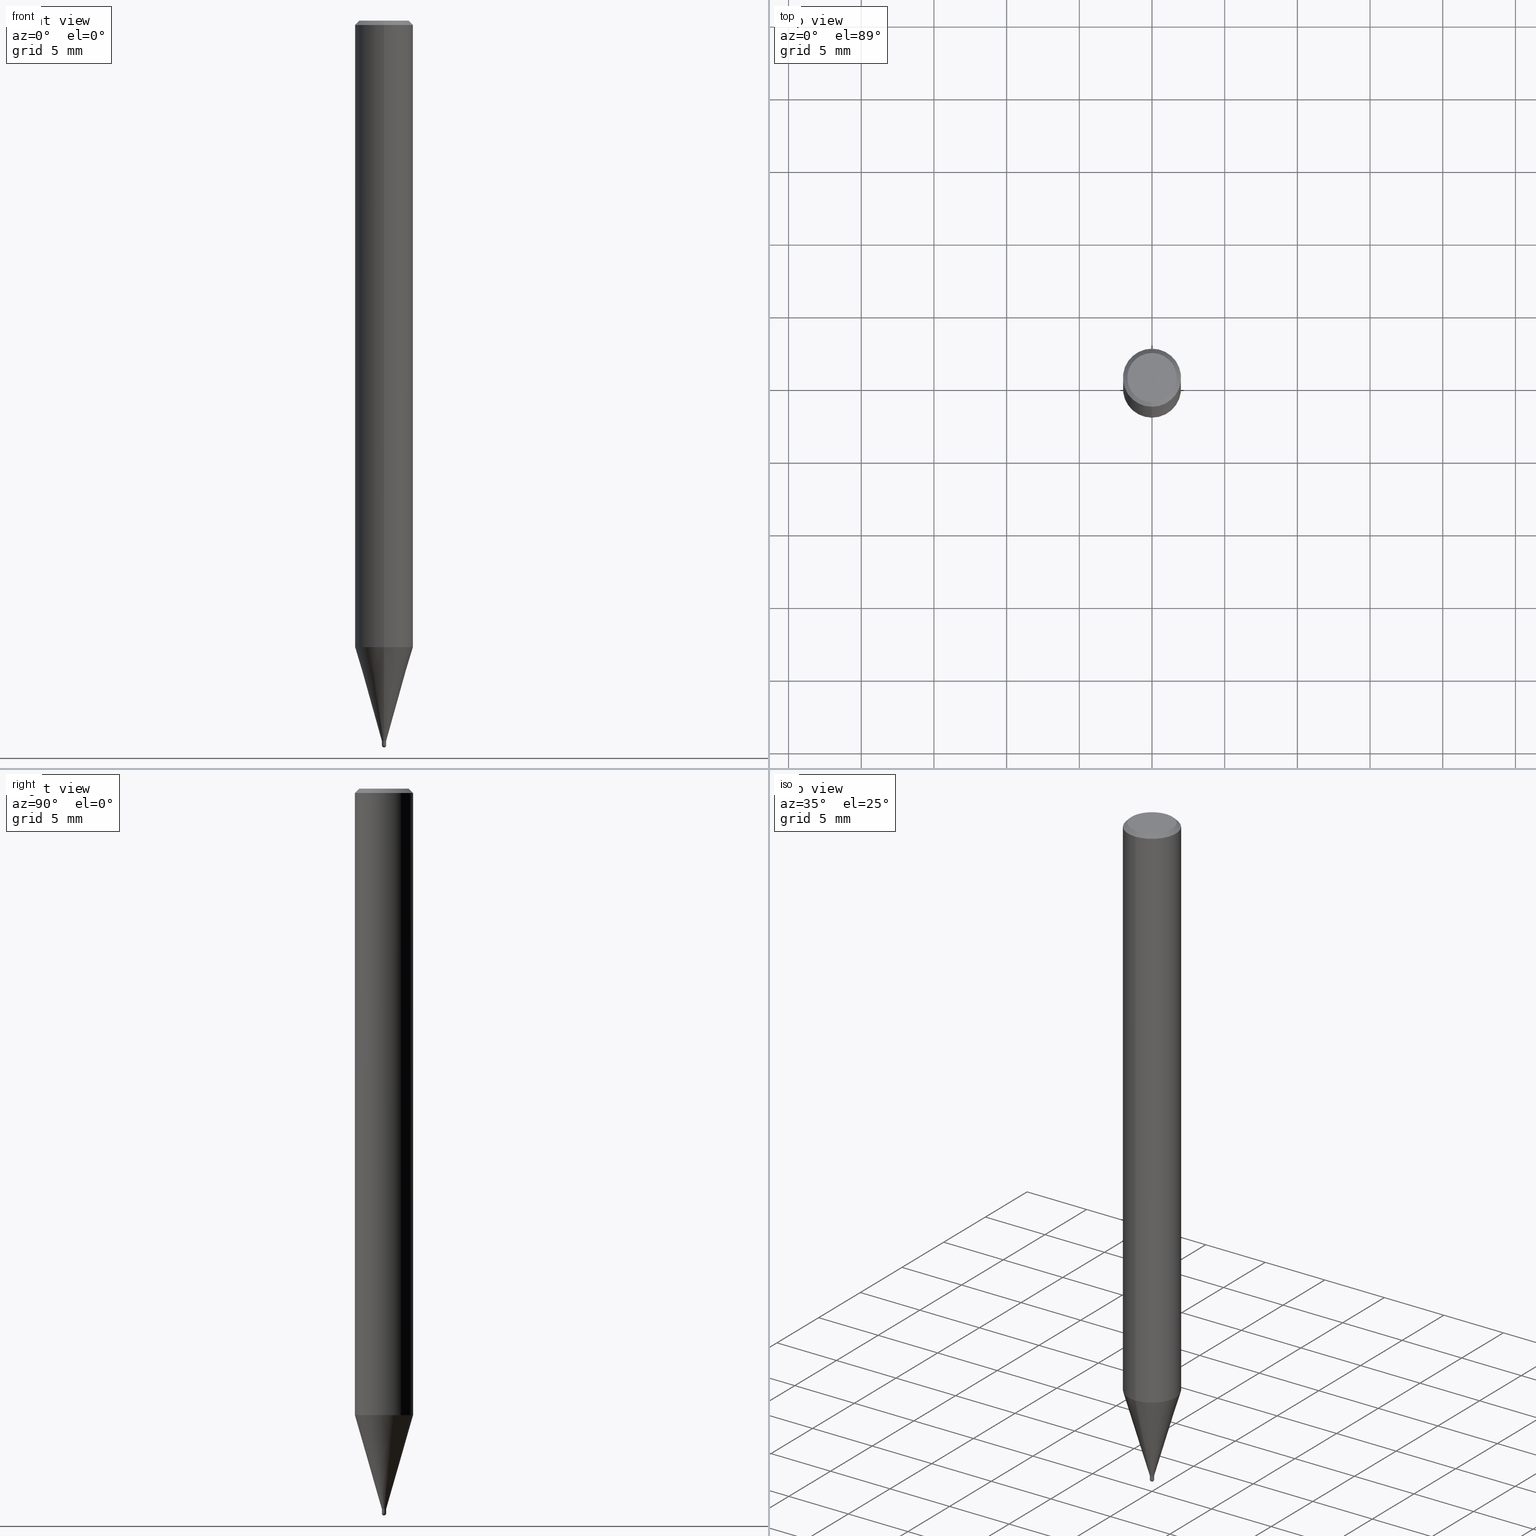
[diagram: canonical four-view strip — front | top / right | iso, engineering-drawing reading convention]
A machine part, canonical four-view strip (front | top / right | iso — engineering-drawing reading convention). The complete STEP part file that produces these views, byte-faithful:
ISO-10303-21;
HEADER;
FILE_DESCRIPTION(('no description'),'unknown implementation level');
FILE_NAME('HSB2003-0045-Huellk.stp','  ',('CIMSOURCE GmbH'),('CADClick - KiM GmbH - www.kimweb.de'),'unknown preprocess','ACIS','unknown authorization');
FILE_SCHEMA(('automotive_design'));
ENDSEC;
DATA;
#1=MECHANICAL_DESIGN_GEOMETRIC_PRESENTATION_REPRESENTATION(' ',(#14,#15,#16,#17,#18,#19,#20,#21,#22,#23,#24,#25,#26,#27,#28,#29,#30,#31,#32,#33,#34,#35,#36,#37,#38,#39,#40,#41,#42,#43,#44,#45,#46,#47,#48,#49,#50,#51,#52,#53,#54,#55,#56,#57,#58,#59,#60,#61,#62,#63,#64,#65,#66),#10);
#2=PRODUCT_DEFINITION_CONTEXT('',#67,'design');
#3=APPLICATION_PROTOCOL_DEFINITION('INTERNATIONAL STANDARD','automotive_design',1994,#67);
#4=PRODUCT_CATEGORY_RELATIONSHIP('NONE','NONE',#68,#69);
#5=SHAPE_DEFINITION_REPRESENTATION(#70,#71);
#6=PRODUCT_DEFINITION_CONTEXT('',#72,'design');
#7=APPLICATION_PROTOCOL_DEFINITION('INTERNATIONAL STANDARD','automotive_design',1994,#72);
#8=PRODUCT_CATEGORY_RELATIONSHIP('NONE','NONE',#73,#74);
#9=SHAPE_DEFINITION_REPRESENTATION(#75,#76);
#10= (GEOMETRIC_REPRESENTATION_CONTEXT(3)GLOBAL_UNCERTAINTY_ASSIGNED_CONTEXT((#79))GLOBAL_UNIT_ASSIGNED_CONTEXT((#81,#82,#83))REPRESENTATION_CONTEXT('NONE','WORKSPACE'));
#14=STYLED_ITEM('',(#85),#86);
#15=STYLED_ITEM('',(#87),#88);
#16=STYLED_ITEM('',(#89),#90);
#17=STYLED_ITEM('',(#91),#92);
#18=STYLED_ITEM('',(#93),#94);
#19=STYLED_ITEM('',(#95),#96);
#20=STYLED_ITEM('',(#97),#98);
#21=STYLED_ITEM('',(#99),#100);
#22=STYLED_ITEM('',(#101),#102);
#23=STYLED_ITEM('',(#103),#104);
#24=STYLED_ITEM('',(#105),#106);
#25=STYLED_ITEM('',(#107),#108);
#26=STYLED_ITEM('',(#109),#110);
#27=STYLED_ITEM('',(#111),#112);
#28=STYLED_ITEM('',(#113),#114);
#29=STYLED_ITEM('',(#115),#116);
#30=STYLED_ITEM('',(#117),#118);
#31=STYLED_ITEM('',(#119),#120);
#32=STYLED_ITEM('',(#121),#122);
#33=STYLED_ITEM('',(#123),#124);
#34=STYLED_ITEM('',(#125),#126);
#35=STYLED_ITEM('',(#127),#128);
#36=STYLED_ITEM('',(#129),#130);
#37=STYLED_ITEM('',(#131),#132);
#38=STYLED_ITEM('',(#133),#134);
#39=STYLED_ITEM('',(#135),#136);
#40=STYLED_ITEM('',(#137),#138);
#41=STYLED_ITEM('',(#139),#140);
#42=STYLED_ITEM('',(#141),#142);
#43=STYLED_ITEM('',(#143),#144);
#44=STYLED_ITEM('',(#145),#146);
#45=STYLED_ITEM('',(#147),#148);
#46=STYLED_ITEM('',(#149),#150);
#47=STYLED_ITEM('',(#151),#152);
#48=STYLED_ITEM('',(#153),#154);
#49=STYLED_ITEM('',(#155),#156);
#50=STYLED_ITEM('',(#157),#158);
#51=STYLED_ITEM('',(#159),#160);
#52=STYLED_ITEM('',(#161),#162);
#53=STYLED_ITEM('',(#163),#164);
#54=STYLED_ITEM('',(#165),#166);
#55=STYLED_ITEM('',(#167),#168);
#56=STYLED_ITEM('',(#169),#170);
#57=STYLED_ITEM('',(#171),#172);
#58=STYLED_ITEM('',(#173),#174);
#59=STYLED_ITEM('',(#175),#176);
#60=STYLED_ITEM('',(#177),#178);
#61=STYLED_ITEM('',(#179),#180);
#62=STYLED_ITEM('',(#181),#182);
#63=STYLED_ITEM('',(#183),#184);
#64=STYLED_ITEM('',(#185),#186);
#65=STYLED_ITEM('',(#187),#188);
#66=STYLED_ITEM('',(#189),#190);
#67=APPLICATION_CONTEXT(' ');
#68=PRODUCT_CATEGORY('part','NONE');
#69=PRODUCT_RELATED_PRODUCT_CATEGORY('detail',' ',(#191));
#70=PRODUCT_DEFINITION_SHAPE('NONE','NONE',#192);
#71=ADVANCED_BREP_SHAPE_REPRESENTATION('1',(#176,#193),#10);
#72=APPLICATION_CONTEXT(' ');
#73=PRODUCT_CATEGORY('part','NONE');
#74=PRODUCT_RELATED_PRODUCT_CATEGORY('detail',' ',(#194));
#75=PRODUCT_DEFINITION_SHAPE('NONE','NONE',#195);
#76=ADVANCED_BREP_SHAPE_REPRESENTATION('2',(#140,#196),#10);
#79=UNCERTAINTY_MEASURE_WITH_UNIT(LENGTH_MEASURE(1.0E-006),#81,'','');
#81= (CONVERSION_BASED_UNIT('MILLIMETRE',#199)LENGTH_UNIT()NAMED_UNIT(#202));
#82= (NAMED_UNIT(#204)PLANE_ANGLE_UNIT()SI_UNIT($,.RADIAN.));
#83= (NAMED_UNIT(#204)SOLID_ANGLE_UNIT()SI_UNIT($,.STERADIAN.));
#85=PRESENTATION_STYLE_ASSIGNMENT((#210));
#86=EDGE_CURVE('',#90,#104,#211,.T.);
#87=PRESENTATION_STYLE_ASSIGNMENT((#212));
#88=EDGE_CURVE('',#160,#112,#213,.T.);
#89=PRESENTATION_STYLE_ASSIGNMENT((#214));
#90=VERTEX_POINT('',#215);
#91=PRESENTATION_STYLE_ASSIGNMENT((#216));
#92=EDGE_CURVE('',#110,#160,#217,.T.);
#93=PRESENTATION_STYLE_ASSIGNMENT((#218));
#94=VERTEX_POINT('',#219);
#95=PRESENTATION_STYLE_ASSIGNMENT((#220));
#96=VERTEX_POINT('',#221);
#97=PRESENTATION_STYLE_ASSIGNMENT((#222));
#98=ADVANCED_FACE('',(#223),#224,.T.);
#99=PRESENTATION_STYLE_ASSIGNMENT((#225));
#100=ADVANCED_FACE('',(#226),#227,.T.);
#101=PRESENTATION_STYLE_ASSIGNMENT((#228));
#102=EDGE_CURVE('',#182,#170,#229,.T.);
#103=PRESENTATION_STYLE_ASSIGNMENT((#230));
#104=VERTEX_POINT('',#231);
#105=PRESENTATION_STYLE_ASSIGNMENT((#232));
#106=VERTEX_POINT('',#233);
#107=PRESENTATION_STYLE_ASSIGNMENT((#234));
#108=ADVANCED_FACE('',(#235),#236,.T.);
#109=PRESENTATION_STYLE_ASSIGNMENT((#237));
#110=VERTEX_POINT('',#238);
#111=PRESENTATION_STYLE_ASSIGNMENT((#239));
#112=VERTEX_POINT('',#240);
#113=PRESENTATION_STYLE_ASSIGNMENT((#241));
#114=EDGE_CURVE('',#190,#152,#242,.T.);
#115=PRESENTATION_STYLE_ASSIGNMENT((#243));
#116=ADVANCED_FACE('',(#244),#245,.T.);
#117=PRESENTATION_STYLE_ASSIGNMENT((#246));
#118=EDGE_CURVE('',#112,#162,#247,.T.);
#119=PRESENTATION_STYLE_ASSIGNMENT((#248));
#120=EDGE_CURVE('',#96,#90,#249,.T.);
#121=PRESENTATION_STYLE_ASSIGNMENT((#250));
#122=ADVANCED_FACE('',(#251),#252,.T.);
#123=PRESENTATION_STYLE_ASSIGNMENT((#253));
#124=ADVANCED_FACE('',(#254),#255,.T.);
#125=PRESENTATION_STYLE_ASSIGNMENT((#256));
#126=EDGE_CURVE('',#190,#182,#257,.T.);
#127=PRESENTATION_STYLE_ASSIGNMENT((#258));
#128=EDGE_CURVE('',#152,#190,#259,.T.);
#129=PRESENTATION_STYLE_ASSIGNMENT((#260));
#130=EDGE_CURVE('',#106,#96,#261,.T.);
#131=PRESENTATION_STYLE_ASSIGNMENT((#262));
#132=ADVANCED_FACE('',(#263),#264,.T.);
#133=PRESENTATION_STYLE_ASSIGNMENT((#265));
#134=EDGE_CURVE('',#162,#110,#266,.T.);
#135=PRESENTATION_STYLE_ASSIGNMENT((#267));
#136=EDGE_CURVE('',#104,#106,#268,.T.);
#137=PRESENTATION_STYLE_ASSIGNMENT((#269));
#138=ADVANCED_FACE('',(#270),#271,.T.);
#139=PRESENTATION_STYLE_ASSIGNMENT((#272));
#140=MANIFOLD_SOLID_BREP('2',#273);
#141=PRESENTATION_STYLE_ASSIGNMENT((#274));
#142=VERTEX_POINT('',#275);
#143=PRESENTATION_STYLE_ASSIGNMENT((#276));
#144=EDGE_CURVE('',#170,#152,#277,.T.);
#145=PRESENTATION_STYLE_ASSIGNMENT((#278));
#146=ADVANCED_FACE('',(#279,#280),#281,.T.);
#147=PRESENTATION_STYLE_ASSIGNMENT((#282));
#148=EDGE_CURVE('',#94,#90,#283,.T.);
#149=PRESENTATION_STYLE_ASSIGNMENT((#284));
#150=ADVANCED_FACE('',(#285),#286,.T.);
#151=PRESENTATION_STYLE_ASSIGNMENT((#287));
#152=VERTEX_POINT('',#288);
#153=PRESENTATION_STYLE_ASSIGNMENT((#289));
#154=EDGE_CURVE('',#190,#152,#290,.T.);
#155=PRESENTATION_STYLE_ASSIGNMENT((#291));
#156=EDGE_CURVE('',#142,#94,#292,.T.);
#157=PRESENTATION_STYLE_ASSIGNMENT((#293));
#158=ADVANCED_FACE('',(#294),#295,.T.);
#159=PRESENTATION_STYLE_ASSIGNMENT((#296));
#160=VERTEX_POINT('',#297);
#161=PRESENTATION_STYLE_ASSIGNMENT((#298));
#162=VERTEX_POINT('',#299);
#163=PRESENTATION_STYLE_ASSIGNMENT((#300));
#164=EDGE_CURVE('',#90,#96,#301,.T.);
#165=PRESENTATION_STYLE_ASSIGNMENT((#302));
#166=EDGE_CURVE('',#94,#142,#303,.T.);
#167=PRESENTATION_STYLE_ASSIGNMENT((#304));
#168=EDGE_CURVE('',#96,#142,#305,.T.);
#169=PRESENTATION_STYLE_ASSIGNMENT((#306));
#170=VERTEX_POINT('',#307);
#171=PRESENTATION_STYLE_ASSIGNMENT((#308));
#172=ADVANCED_FACE('',(#309),#310,.T.);
#173=PRESENTATION_STYLE_ASSIGNMENT((#311));
#174=ADVANCED_FACE('',(#312),#313,.T.);
#175=PRESENTATION_STYLE_ASSIGNMENT((#314));
#176=MANIFOLD_SOLID_BREP('1',#315);
#177=PRESENTATION_STYLE_ASSIGNMENT((#316));
#178=EDGE_CURVE('',#112,#160,#317,.T.);
#179=PRESENTATION_STYLE_ASSIGNMENT((#318));
#180=EDGE_CURVE('',#110,#162,#319,.T.);
#181=PRESENTATION_STYLE_ASSIGNMENT((#320));
#182=VERTEX_POINT('',#321);
#183=PRESENTATION_STYLE_ASSIGNMENT((#322));
#184=EDGE_CURVE('',#170,#182,#323,.T.);
#185=PRESENTATION_STYLE_ASSIGNMENT((#324));
#186=EDGE_CURVE('',#106,#104,#325,.T.);
#187=PRESENTATION_STYLE_ASSIGNMENT((#326));
#188=ADVANCED_FACE('',(#327),#328,.T.);
#189=PRESENTATION_STYLE_ASSIGNMENT((#329));
#190=VERTEX_POINT('',#330);
#191=PRODUCT('1','1','PART-1-DESC',(#331));
#192=PRODUCT_DEFINITION('NONE','NONE',#332,#2);
#193=AXIS2_PLACEMENT_3D('',#333,#334,#335);
#194=PRODUCT('2','2','PART-2-DESC',(#336));
#195=PRODUCT_DEFINITION('NONE','NONE',#337,#6);
#196=AXIS2_PLACEMENT_3D('',#338,#339,#340);
#199=LENGTH_MEASURE_WITH_UNIT(LENGTH_MEASURE(1.0),#341);
#202=DIMENSIONAL_EXPONENTS(1.0,0.0,0.0,0.0,0.0,0.0,0.0);
#204=DIMENSIONAL_EXPONENTS(0.0,0.0,0.0,0.0,0.0,0.0,0.0);
#210=CURVE_STYLE('',#342,POSITIVE_LENGTH_MEASURE(1.0E-006),#343);
#211=LINE('',#344,#345);
#212=CURVE_STYLE('',#346,POSITIVE_LENGTH_MEASURE(1.0E-006),#347);
#213=CIRCLE('',#348,0.14995);
#214=POINT_STYLE(' ',#349,POSITIVE_LENGTH_MEASURE(1.0E-006),#350);
#215=CARTESIAN_POINT('',(2.44921270764475E-016,-2.0,-0.299999999999997));
#216=CURVE_STYLE('',#351,POSITIVE_LENGTH_MEASURE(1.0E-006),#352);
#217=LINE('',#353,#354);
#218=POINT_STYLE(' ',#355,POSITIVE_LENGTH_MEASURE(1.0E-006),#356);
#219=CARTESIAN_POINT('',(2.44921270764475E-016,-2.0,-43.098));
#220=POINT_STYLE(' ',#357,POSITIVE_LENGTH_MEASURE(1.0E-006),#358);
#221=CARTESIAN_POINT('',(0.0,2.0,-0.299999999999997));
#222=SURFACE_STYLE_USAGE(.BOTH.,#359);
#223=FACE_OUTER_BOUND('',#360,.T.);
#224=CONICAL_SURFACE('',#361,1.07495,0.279241047070178);
#225=SURFACE_STYLE_USAGE(.BOTH.,#362);
#226=FACE_OUTER_BOUND('',#363,.T.);
#227=PLANE('',#364);
#228=CURVE_STYLE('',#365,POSITIVE_LENGTH_MEASURE(1.0E-006),#366);
#229=CIRCLE('',#367,0.1499);
#230=POINT_STYLE(' ',#368,POSITIVE_LENGTH_MEASURE(1.0E-006),#369);
#231=CARTESIAN_POINT('',(2.08183080149804E-016,-1.7,0.0));
#232=POINT_STYLE(' ',#370,POSITIVE_LENGTH_MEASURE(1.0E-006),#371);
#233=CARTESIAN_POINT('',(0.0,1.7,0.0));
#234=SURFACE_STYLE_USAGE(.BOTH.,#372);
#235=FACE_OUTER_BOUND('',#373,.T.);
#236=SPHERICAL_SURFACE('',#374,0.15);
#237=POINT_STYLE(' ',#375,POSITIVE_LENGTH_MEASURE(1.0E-006),#376);
#238=CARTESIAN_POINT('',(0.0,1.99995,-43.098));
#239=POINT_STYLE(' ',#377,POSITIVE_LENGTH_MEASURE(1.0E-006),#378);
#240=CARTESIAN_POINT('',(1.83629722755666E-017,-0.14995,-49.55));
#241=CURVE_STYLE('',#379,POSITIVE_LENGTH_MEASURE(1.0E-006),#380);
#242=CIRCLE('',#381,0.15);
#243=SURFACE_STYLE_USAGE(.BOTH.,#382);
#244=FACE_OUTER_BOUND('',#383,.T.);
#245=PLANE('',#384);
#246=CURVE_STYLE('',#385,POSITIVE_LENGTH_MEASURE(1.0E-006),#386);
#247=LINE('',#387,#388);
#248=CURVE_STYLE('',#389,POSITIVE_LENGTH_MEASURE(1.0E-006),#390);
#249=CIRCLE('',#391,2.0);
#250=SURFACE_STYLE_USAGE(.BOTH.,#392);
#251=FACE_OUTER_BOUND('',#393,.T.);
#252=CONICAL_SURFACE('',#394,1.07495,0.279241047070178);
#253=SURFACE_STYLE_USAGE(.BOTH.,#395);
#254=FACE_OUTER_BOUND('',#396,.T.);
#255=CONICAL_SURFACE('',#397,0.14995,0.000333333320987618);
#256=CURVE_STYLE('',#398,POSITIVE_LENGTH_MEASURE(1.0E-006),#399);
#257=LINE('',#400,#401);
#258=CURVE_STYLE('',#402,POSITIVE_LENGTH_MEASURE(1.0E-006),#403);
#259=CIRCLE('',#404,0.15);
#260=CURVE_STYLE('',#405,POSITIVE_LENGTH_MEASURE(1.0E-006),#406);
#261=LINE('',#407,#408);
#262=SURFACE_STYLE_USAGE(.BOTH.,#409);
#263=FACE_OUTER_BOUND('',#410,.T.);
#264=CONICAL_SURFACE('',#411,1.85,0.785398163397453);
#265=CURVE_STYLE('',#412,POSITIVE_LENGTH_MEASURE(1.0E-006),#413);
#266=CIRCLE('',#414,1.99995);
#267=CURVE_STYLE('',#415,POSITIVE_LENGTH_MEASURE(1.0E-006),#416);
#268=CIRCLE('',#417,1.7);
#269=SURFACE_STYLE_USAGE(.BOTH.,#418);
#270=FACE_OUTER_BOUND('',#419,.T.);
#271=CYLINDRICAL_SURFACE('',#420,2.0);
#272=SURFACE_STYLE_USAGE(.BOTH.,#421);
#273=CLOSED_SHELL('',(#108,#124,#100,#150,#188));
#274=POINT_STYLE(' ',#422,POSITIVE_LENGTH_MEASURE(1.0E-006),#423);
#275=CARTESIAN_POINT('',(0.0,2.0,-43.098));
#276=CURVE_STYLE('',#424,POSITIVE_LENGTH_MEASURE(1.0E-006),#425);
#277=LINE('',#426,#427);
#278=SURFACE_STYLE_USAGE(.BOTH.,#428);
#279=FACE_OUTER_BOUND('',#429,.T.);
#280=FACE_BOUND('',#430,.T.);
#281=PLANE('',#431);
#282=CURVE_STYLE('',#432,POSITIVE_LENGTH_MEASURE(1.0E-006),#433);
#283=LINE('',#434,#435);
#284=SURFACE_STYLE_USAGE(.BOTH.,#436);
#285=FACE_OUTER_BOUND('',#437,.T.);
#286=CONICAL_SURFACE('',#438,0.14995,0.000333333320987618);
#287=POINT_STYLE(' ',#439,POSITIVE_LENGTH_MEASURE(1.0E-006),#440);
#288=CARTESIAN_POINT('',(0.0,0.15,-49.85));
#289=CURVE_STYLE('',#441,POSITIVE_LENGTH_MEASURE(1.0E-006),#442);
#290=CIRCLE('',#443,0.15);
#291=CURVE_STYLE('',#444,POSITIVE_LENGTH_MEASURE(1.0E-006),#445);
#292=CIRCLE('',#446,2.0);
#293=SURFACE_STYLE_USAGE(.BOTH.,#447);
#294=FACE_OUTER_BOUND('',#448,.T.);
#295=CONICAL_SURFACE('',#449,1.85,0.785398163397453);
#296=POINT_STYLE(' ',#450,POSITIVE_LENGTH_MEASURE(1.0E-006),#451);
#297=CARTESIAN_POINT('',(0.0,0.14995,-49.55));
#298=POINT_STYLE(' ',#452,POSITIVE_LENGTH_MEASURE(1.0E-006),#453);
#299=CARTESIAN_POINT('',(2.44915147732706E-016,-1.99995,-43.098));
#300=CURVE_STYLE('',#454,POSITIVE_LENGTH_MEASURE(1.0E-006),#455);
#301=CIRCLE('',#456,2.0);
#302=CURVE_STYLE('',#457,POSITIVE_LENGTH_MEASURE(1.0E-006),#458);
#303=CIRCLE('',#459,2.0);
#304=CURVE_STYLE('',#460,POSITIVE_LENGTH_MEASURE(1.0E-006),#461);
#305=LINE('',#462,#463);
#306=POINT_STYLE(' ',#464,POSITIVE_LENGTH_MEASURE(1.0E-006),#465);
#307=CARTESIAN_POINT('',(0.0,0.1499,-49.55));
#308=SURFACE_STYLE_USAGE(.BOTH.,#466);
#309=FACE_OUTER_BOUND('',#467,.T.);
#310=PLANE('',#468);
#311=SURFACE_STYLE_USAGE(.BOTH.,#469);
#312=FACE_OUTER_BOUND('',#470,.T.);
#313=CYLINDRICAL_SURFACE('',#471,2.0);
#314=SURFACE_STYLE_USAGE(.BOTH.,#472);
#315=CLOSED_SHELL('',(#122,#138,#132,#146,#172,#158,#174,#98,#116));
#316=CURVE_STYLE('',#473,POSITIVE_LENGTH_MEASURE(1.0E-006),#474);
#317=CIRCLE('',#475,0.14995);
#318=CURVE_STYLE('',#476,POSITIVE_LENGTH_MEASURE(1.0E-006),#477);
#319=CIRCLE('',#478,1.99995);
#320=POINT_STYLE(' ',#479,POSITIVE_LENGTH_MEASURE(1.0E-006),#480);
#321=CARTESIAN_POINT('',(1.83568492437974E-017,-0.1499,-49.55));
#322=CURVE_STYLE('',#481,POSITIVE_LENGTH_MEASURE(1.0E-006),#482);
#323=CIRCLE('',#483,0.1499);
#324=CURVE_STYLE('',#484,POSITIVE_LENGTH_MEASURE(1.0E-006),#485);
#325=CIRCLE('',#486,1.7);
#326=SURFACE_STYLE_USAGE(.BOTH.,#487);
#327=FACE_OUTER_BOUND('',#488,.T.);
#328=SPHERICAL_SURFACE('',#489,0.15);
#329=POINT_STYLE(' ',#490,POSITIVE_LENGTH_MEASURE(1.0E-006),#491);
#330=CARTESIAN_POINT('',(1.83690953073356E-017,-0.15,-49.85));
#331=PRODUCT_CONTEXT('',#67,'mechanical');
#332=PRODUCT_DEFINITION_FORMATION_WITH_SPECIFIED_SOURCE(' ','NONE',#191,.NOT_KNOWN.);
#333=CARTESIAN_POINT('',(0.0,0.0,0.0));
#334=DIRECTION('',(0.0,0.0,1.0));
#335=DIRECTION('',(1.0,0.0,0.0));
#336=PRODUCT_CONTEXT('',#72,'mechanical');
#337=PRODUCT_DEFINITION_FORMATION_WITH_SPECIFIED_SOURCE(' ','NONE',#194,.NOT_KNOWN.);
#338=CARTESIAN_POINT('',(0.0,0.0,0.0));
#339=DIRECTION('',(0.0,0.0,1.0));
#340=DIRECTION('',(1.0,0.0,0.0));
#341= (NAMED_UNIT(#202)LENGTH_UNIT()SI_UNIT(.MILLI.,.METRE.));
#342=DRAUGHTING_PRE_DEFINED_CURVE_FONT('continuous');
#343=COLOUR_RGB('',0.498039215803146,0.498039215803146,0.498039215803146);
#344=CARTESIAN_POINT('',(2.2655217545714E-016,-1.85,-0.149999999999999));
#345=VECTOR('',#493,1.0);
#346=DRAUGHTING_PRE_DEFINED_CURVE_FONT('continuous');
#347=COLOUR_RGB('',0.498039215803146,0.498039215803146,0.498039215803146);
#348=AXIS2_PLACEMENT_3D('',#494,#495,#496);
#349=PRE_DEFINED_MARKER('');
#350=COLOUR_RGB('',0.498039215803146,0.498039215803146,0.498039215803146);
#351=DRAUGHTING_PRE_DEFINED_CURVE_FONT('continuous');
#352=COLOUR_RGB('',0.498039215803146,0.498039215803146,0.498039215803146);
#353=CARTESIAN_POINT('',(-1.31639060004136E-016,1.07495,-46.324));
#354=VECTOR('',#497,1.0);
#355=PRE_DEFINED_MARKER('');
#356=COLOUR_RGB('',0.498039215803146,0.498039215803146,0.498039215803146);
#357=PRE_DEFINED_MARKER('');
#358=COLOUR_RGB('',0.498039215803146,0.498039215803146,0.498039215803146);
#359=SURFACE_SIDE_STYLE('',(#498));
#360=EDGE_LOOP('',(#499,#500,#501,#502));
#361=AXIS2_PLACEMENT_3D('',#503,#504,#505);
#362=SURFACE_SIDE_STYLE('',(#506));
#363=EDGE_LOOP('',(#507,#508));
#364=AXIS2_PLACEMENT_3D('',#509,#510,#511);
#365=DRAUGHTING_PRE_DEFINED_CURVE_FONT('continuous');
#366=COLOUR_RGB('',0.800000011920929,0.800000011920929,0.800000011920929);
#367=AXIS2_PLACEMENT_3D('',#512,#513,#514);
#368=PRE_DEFINED_MARKER('');
#369=COLOUR_RGB('',0.498039215803146,0.498039215803146,0.498039215803146);
#370=PRE_DEFINED_MARKER('');
#371=COLOUR_RGB('',0.498039215803146,0.498039215803146,0.498039215803146);
#372=SURFACE_SIDE_STYLE('',(#515));
#373=EDGE_LOOP('',(#516,#517));
#374=AXIS2_PLACEMENT_3D('',#518,#519,#520);
#375=PRE_DEFINED_MARKER('');
#376=COLOUR_RGB('',0.498039215803146,0.498039215803146,0.498039215803146);
#377=PRE_DEFINED_MARKER('');
#378=COLOUR_RGB('',0.498039215803146,0.498039215803146,0.498039215803146);
#379=DRAUGHTING_PRE_DEFINED_CURVE_FONT('continuous');
#380=COLOUR_RGB('',0.800000011920929,0.800000011920929,0.800000011920929);
#381=AXIS2_PLACEMENT_3D('',#521,#522,#523);
#382=SURFACE_SIDE_STYLE('',(#524));
#383=EDGE_LOOP('',(#525,#526));
#384=AXIS2_PLACEMENT_3D('',#527,#528,#529);
#385=DRAUGHTING_PRE_DEFINED_CURVE_FONT('continuous');
#386=COLOUR_RGB('',0.498039215803146,0.498039215803146,0.498039215803146);
#387=CARTESIAN_POINT('',(1.31639060004136E-016,-1.07495,-46.324));
#388=VECTOR('',#530,1.0);
#389=DRAUGHTING_PRE_DEFINED_CURVE_FONT('continuous');
#390=COLOUR_RGB('',0.498039215803146,0.498039215803146,0.498039215803146);
#391=AXIS2_PLACEMENT_3D('',#531,#532,#533);
#392=SURFACE_SIDE_STYLE('',(#534));
#393=EDGE_LOOP('',(#535,#536,#537,#538));
#394=AXIS2_PLACEMENT_3D('',#539,#540,#541);
#395=SURFACE_SIDE_STYLE('',(#542));
#396=EDGE_LOOP('',(#543,#544,#545,#546));
#397=AXIS2_PLACEMENT_3D('',#547,#548,#549);
#398=DRAUGHTING_PRE_DEFINED_CURVE_FONT('continuous');
#399=COLOUR_RGB('',0.800000011920929,0.800000011920929,0.800000011920929);
#400=CARTESIAN_POINT('',(1.83629722755665E-017,-0.14995,-49.7));
#401=VECTOR('',#550,1.0);
#402=DRAUGHTING_PRE_DEFINED_CURVE_FONT('continuous');
#403=COLOUR_RGB('',0.800000011920929,0.800000011920929,0.800000011920929);
#404=AXIS2_PLACEMENT_3D('',#551,#552,#553);
#405=DRAUGHTING_PRE_DEFINED_CURVE_FONT('continuous');
#406=COLOUR_RGB('',0.498039215803146,0.498039215803146,0.498039215803146);
#407=CARTESIAN_POINT('',(-2.2655217545714E-016,1.85,-0.149999999999999));
#408=VECTOR('',#554,1.0);
#409=SURFACE_SIDE_STYLE('',(#555));
#410=EDGE_LOOP('',(#556,#557,#558,#559));
#411=AXIS2_PLACEMENT_3D('',#560,#561,#562);
#412=DRAUGHTING_PRE_DEFINED_CURVE_FONT('continuous');
#413=COLOUR_RGB('',0.498039215803146,0.498039215803146,0.498039215803146);
#414=AXIS2_PLACEMENT_3D('',#563,#564,#565);
#415=DRAUGHTING_PRE_DEFINED_CURVE_FONT('continuous');
#416=COLOUR_RGB('',0.498039215803146,0.498039215803146,0.498039215803146);
#417=AXIS2_PLACEMENT_3D('',#566,#567,#568);
#418=SURFACE_SIDE_STYLE('',(#569));
#419=EDGE_LOOP('',(#570,#571,#572,#573));
#420=AXIS2_PLACEMENT_3D('',#574,#575,#576);
#421=SURFACE_SIDE_STYLE('',(#577));
#422=PRE_DEFINED_MARKER('');
#423=COLOUR_RGB('',0.498039215803146,0.498039215803146,0.498039215803146);
#424=DRAUGHTING_PRE_DEFINED_CURVE_FONT('continuous');
#425=COLOUR_RGB('',0.800000011920929,0.800000011920929,0.800000011920929);
#426=CARTESIAN_POINT('',(-1.83629722755665E-017,0.14995,-49.7));
#427=VECTOR('',#578,1.0);
#428=SURFACE_SIDE_STYLE('',(#579));
#429=EDGE_LOOP('',(#580,#581));
#430=EDGE_LOOP('',(#582,#583));
#431=AXIS2_PLACEMENT_3D('',#584,#585,#586);
#432=DRAUGHTING_PRE_DEFINED_CURVE_FONT('continuous');
#433=COLOUR_RGB('',0.498039215803146,0.498039215803146,0.498039215803146);
#434=CARTESIAN_POINT('',(2.44921270764475E-016,-2.0,-21.699));
#435=VECTOR('',#587,1.0);
#436=SURFACE_SIDE_STYLE('',(#588));
#437=EDGE_LOOP('',(#589,#590,#591,#592));
#438=AXIS2_PLACEMENT_3D('',#593,#594,#595);
#439=PRE_DEFINED_MARKER('');
#440=COLOUR_RGB('',0.800000011920929,0.800000011920929,0.800000011920929);
#441=DRAUGHTING_PRE_DEFINED_CURVE_FONT('continuous');
#442=COLOUR_RGB('',0.800000011920929,0.800000011920929,0.800000011920929);
#443=AXIS2_PLACEMENT_3D('',#596,#597,#598);
#444=DRAUGHTING_PRE_DEFINED_CURVE_FONT('continuous');
#445=COLOUR_RGB('',0.498039215803146,0.498039215803146,0.498039215803146);
#446=AXIS2_PLACEMENT_3D('',#599,#600,#601);
#447=SURFACE_SIDE_STYLE('',(#602));
#448=EDGE_LOOP('',(#603,#604,#605,#606));
#449=AXIS2_PLACEMENT_3D('',#607,#608,#609);
#450=PRE_DEFINED_MARKER('');
#451=COLOUR_RGB('',0.498039215803146,0.498039215803146,0.498039215803146);
#452=PRE_DEFINED_MARKER('');
#453=COLOUR_RGB('',0.498039215803146,0.498039215803146,0.498039215803146);
#454=DRAUGHTING_PRE_DEFINED_CURVE_FONT('continuous');
#455=COLOUR_RGB('',0.498039215803146,0.498039215803146,0.498039215803146);
#456=AXIS2_PLACEMENT_3D('',#610,#611,#612);
#457=DRAUGHTING_PRE_DEFINED_CURVE_FONT('continuous');
#458=COLOUR_RGB('',0.498039215803146,0.498039215803146,0.498039215803146);
#459=AXIS2_PLACEMENT_3D('',#613,#614,#615);
#460=DRAUGHTING_PRE_DEFINED_CURVE_FONT('continuous');
#461=COLOUR_RGB('',0.498039215803146,0.498039215803146,0.498039215803146);
#462=CARTESIAN_POINT('',(-2.44921270764475E-016,2.0,-21.699));
#463=VECTOR('',#616,1.0);
#464=PRE_DEFINED_MARKER('');
#465=COLOUR_RGB('',0.800000011920929,0.800000011920929,0.800000011920929);
#466=SURFACE_SIDE_STYLE('',(#617));
#467=EDGE_LOOP('',(#618,#619));
#468=AXIS2_PLACEMENT_3D('',#620,#621,#622);
#469=SURFACE_SIDE_STYLE('',(#623));
#470=EDGE_LOOP('',(#624,#625,#626,#627));
#471=AXIS2_PLACEMENT_3D('',#628,#629,#630);
#472=SURFACE_SIDE_STYLE('',(#631));
#473=DRAUGHTING_PRE_DEFINED_CURVE_FONT('continuous');
#474=COLOUR_RGB('',0.498039215803146,0.498039215803146,0.498039215803146);
#475=AXIS2_PLACEMENT_3D('',#632,#633,#634);
#476=DRAUGHTING_PRE_DEFINED_CURVE_FONT('continuous');
#477=COLOUR_RGB('',0.498039215803146,0.498039215803146,0.498039215803146);
#478=AXIS2_PLACEMENT_3D('',#635,#636,#637);
#479=PRE_DEFINED_MARKER('');
#480=COLOUR_RGB('',0.800000011920929,0.800000011920929,0.800000011920929);
#481=DRAUGHTING_PRE_DEFINED_CURVE_FONT('continuous');
#482=COLOUR_RGB('',0.800000011920929,0.800000011920929,0.800000011920929);
#483=AXIS2_PLACEMENT_3D('',#638,#639,#640);
#484=DRAUGHTING_PRE_DEFINED_CURVE_FONT('continuous');
#485=COLOUR_RGB('',0.498039215803146,0.498039215803146,0.498039215803146);
#486=AXIS2_PLACEMENT_3D('',#641,#642,#643);
#487=SURFACE_SIDE_STYLE('',(#644));
#488=EDGE_LOOP('',(#645,#646));
#489=AXIS2_PLACEMENT_3D('',#647,#648,#649);
#490=PRE_DEFINED_MARKER('');
#491=COLOUR_RGB('',0.800000011920929,0.800000011920929,0.800000011920929);
#493=DIRECTION('',(-8.6592745707194E-017,0.707106781186551,0.707106781186544));
#494=CARTESIAN_POINT('',(0.0,0.0,-49.55));
#495=DIRECTION('',(0.0,0.0,-1.0));
#496=DIRECTION('',(0.0,1.0,0.0));
#497=DIRECTION('',(3.37533562982631E-017,-0.275626173201767,-0.961264902431244));
#498=SURFACE_STYLE_FILL_AREA(#650);
#499=ORIENTED_EDGE('',*,*,#92,.T.);
#500=ORIENTED_EDGE('',*,*,#178,.F.);
#501=ORIENTED_EDGE('',*,*,#118,.T.);
#502=ORIENTED_EDGE('',*,*,#134,.T.);
#503=CARTESIAN_POINT('',(0.0,0.0,-46.324));
#504=DIRECTION('',(-0.0,-0.0,1.0));
#505=DIRECTION('',(0.0,1.0,0.0));
#506=SURFACE_STYLE_FILL_AREA(#651);
#507=ORIENTED_EDGE('',*,*,#184,.F.);
#508=ORIENTED_EDGE('',*,*,#102,.F.);
#509=CARTESIAN_POINT('',(0.0,0.07495,-49.55));
#510=DIRECTION('',(-0.0,0.0,1.0));
#511=DIRECTION('',(0.0,-1.0,0.0));
#512=CARTESIAN_POINT('',(0.0,0.0,-49.55));
#513=DIRECTION('',(0.0,0.0,-1.0));
#514=DIRECTION('',(0.0,1.0,0.0));
#515=SURFACE_STYLE_FILL_AREA(#652);
#516=ORIENTED_EDGE('',*,*,#154,.F.);
#517=ORIENTED_EDGE('',*,*,#114,.T.);
#518=CARTESIAN_POINT('',(0.0,0.0,-49.85));
#519=DIRECTION('',(0.0,1.0,0.0));
#520=DIRECTION('',(0.0,0.0,-1.0));
#521=CARTESIAN_POINT('',(0.0,0.0,-49.85));
#522=DIRECTION('',(0.0,0.0,-1.0));
#523=DIRECTION('',(0.0,1.0,0.0));
#524=SURFACE_STYLE_FILL_AREA(#653);
#525=ORIENTED_EDGE('',*,*,#88,.T.);
#526=ORIENTED_EDGE('',*,*,#178,.T.);
#527=CARTESIAN_POINT('',(0.0,0.074975,-49.55));
#528=DIRECTION('',(0.0,0.0,-1.0));
#529=DIRECTION('',(0.0,1.0,0.0));
#530=DIRECTION('',(3.37533562982631E-017,-0.275626173201767,0.961264902431244));
#531=CARTESIAN_POINT('',(0.0,0.0,-0.299999999999997));
#532=DIRECTION('',(0.0,0.0,-1.0));
#533=DIRECTION('',(0.0,1.0,0.0));
#534=SURFACE_STYLE_FILL_AREA(#654);
#535=ORIENTED_EDGE('',*,*,#92,.F.);
#536=ORIENTED_EDGE('',*,*,#180,.T.);
#537=ORIENTED_EDGE('',*,*,#118,.F.);
#538=ORIENTED_EDGE('',*,*,#88,.F.);
#539=CARTESIAN_POINT('',(0.0,0.0,-46.324));
#540=DIRECTION('',(-0.0,-0.0,1.0));
#541=DIRECTION('',(0.0,1.0,0.0));
#542=SURFACE_STYLE_FILL_AREA(#655);
#543=ORIENTED_EDGE('',*,*,#144,.F.);
#544=ORIENTED_EDGE('',*,*,#184,.T.);
#545=ORIENTED_EDGE('',*,*,#126,.F.);
#546=ORIENTED_EDGE('',*,*,#128,.F.);
#547=CARTESIAN_POINT('',(0.0,0.0,-49.7));
#548=DIRECTION('',(0.0,-0.0,-1.0));
#549=DIRECTION('',(0.0,1.0,0.0));
#550=DIRECTION('',(-4.08202095262854E-020,0.00033333331481478,0.999999944444449));
#551=CARTESIAN_POINT('',(0.0,0.0,-49.85));
#552=DIRECTION('',(0.0,0.0,-1.0));
#553=DIRECTION('',(0.0,1.0,0.0));
#554=DIRECTION('',(-8.6592745707194E-017,0.707106781186551,-0.707106781186544));
#555=SURFACE_STYLE_FILL_AREA(#656);
#556=ORIENTED_EDGE('',*,*,#130,.F.);
#557=ORIENTED_EDGE('',*,*,#186,.T.);
#558=ORIENTED_EDGE('',*,*,#86,.F.);
#559=ORIENTED_EDGE('',*,*,#120,.F.);
#560=CARTESIAN_POINT('',(0.0,0.0,-0.149999999999999));
#561=DIRECTION('',(0.0,-0.0,-1.0));
#562=DIRECTION('',(0.0,1.0,0.0));
#563=CARTESIAN_POINT('',(0.0,0.0,-43.098));
#564=DIRECTION('',(0.0,0.0,-1.0));
#565=DIRECTION('',(0.0,1.0,0.0));
#566=CARTESIAN_POINT('',(0.0,0.0,0.0));
#567=DIRECTION('',(0.0,0.0,-1.0));
#568=DIRECTION('',(0.0,1.0,0.0));
#569=SURFACE_STYLE_FILL_AREA(#657);
#570=ORIENTED_EDGE('',*,*,#168,.F.);
#571=ORIENTED_EDGE('',*,*,#120,.T.);
#572=ORIENTED_EDGE('',*,*,#148,.F.);
#573=ORIENTED_EDGE('',*,*,#156,.F.);
#574=CARTESIAN_POINT('',(0.0,0.0,-21.699));
#575=DIRECTION('',(-0.0,-0.0,1.0));
#576=DIRECTION('',(0.0,1.0,0.0));
#577=SURFACE_STYLE_FILL_AREA(#658);
#578=DIRECTION('',(-4.08202095262854E-020,0.00033333331481478,-0.999999944444449));
#579=SURFACE_STYLE_FILL_AREA(#659);
#580=ORIENTED_EDGE('',*,*,#156,.T.);
#581=ORIENTED_EDGE('',*,*,#166,.T.);
#582=ORIENTED_EDGE('',*,*,#180,.F.);
#583=ORIENTED_EDGE('',*,*,#134,.F.);
#584=CARTESIAN_POINT('',(0.0,1.0,-43.098));
#585=DIRECTION('',(0.0,0.0,-1.0));
#586=DIRECTION('',(0.0,1.0,0.0));
#587=DIRECTION('',(-0.0,-0.0,1.0));
#588=SURFACE_STYLE_FILL_AREA(#660);
#589=ORIENTED_EDGE('',*,*,#144,.T.);
#590=ORIENTED_EDGE('',*,*,#114,.F.);
#591=ORIENTED_EDGE('',*,*,#126,.T.);
#592=ORIENTED_EDGE('',*,*,#102,.T.);
#593=CARTESIAN_POINT('',(0.0,0.0,-49.7));
#594=DIRECTION('',(0.0,-0.0,-1.0));
#595=DIRECTION('',(0.0,1.0,0.0));
#596=CARTESIAN_POINT('',(0.0,0.0,-49.85));
#597=DIRECTION('',(1.0,0.0,1.22460635382239E-016));
#598=DIRECTION('',(-1.22460635382239E-016,0.0,1.0));
#599=CARTESIAN_POINT('',(0.0,0.0,-43.098));
#600=DIRECTION('',(0.0,0.0,-1.0));
#601=DIRECTION('',(0.0,1.0,0.0));
#602=SURFACE_STYLE_FILL_AREA(#661);
#603=ORIENTED_EDGE('',*,*,#130,.T.);
#604=ORIENTED_EDGE('',*,*,#164,.F.);
#605=ORIENTED_EDGE('',*,*,#86,.T.);
#606=ORIENTED_EDGE('',*,*,#136,.T.);
#607=CARTESIAN_POINT('',(0.0,0.0,-0.149999999999999));
#608=DIRECTION('',(0.0,-0.0,-1.0));
#609=DIRECTION('',(0.0,1.0,0.0));
#610=CARTESIAN_POINT('',(0.0,0.0,-0.299999999999997));
#611=DIRECTION('',(0.0,0.0,-1.0));
#612=DIRECTION('',(0.0,1.0,0.0));
#613=CARTESIAN_POINT('',(0.0,0.0,-43.098));
#614=DIRECTION('',(0.0,0.0,-1.0));
#615=DIRECTION('',(0.0,1.0,0.0));
#616=DIRECTION('',(0.0,0.0,-1.0));
#617=SURFACE_STYLE_FILL_AREA(#662);
#618=ORIENTED_EDGE('',*,*,#186,.F.);
#619=ORIENTED_EDGE('',*,*,#136,.F.);
#620=CARTESIAN_POINT('',(0.0,0.85,0.0));
#621=DIRECTION('',(-0.0,0.0,1.0));
#622=DIRECTION('',(0.0,-1.0,0.0));
#623=SURFACE_STYLE_FILL_AREA(#663);
#624=ORIENTED_EDGE('',*,*,#168,.T.);
#625=ORIENTED_EDGE('',*,*,#166,.F.);
#626=ORIENTED_EDGE('',*,*,#148,.T.);
#627=ORIENTED_EDGE('',*,*,#164,.T.);
#628=CARTESIAN_POINT('',(0.0,0.0,-21.699));
#629=DIRECTION('',(-0.0,-0.0,1.0));
#630=DIRECTION('',(0.0,1.0,0.0));
#631=SURFACE_STYLE_FILL_AREA(#664);
#632=CARTESIAN_POINT('',(0.0,0.0,-49.55));
#633=DIRECTION('',(0.0,0.0,-1.0));
#634=DIRECTION('',(0.0,1.0,0.0));
#635=CARTESIAN_POINT('',(0.0,0.0,-43.098));
#636=DIRECTION('',(0.0,0.0,-1.0));
#637=DIRECTION('',(0.0,1.0,0.0));
#638=CARTESIAN_POINT('',(0.0,0.0,-49.55));
#639=DIRECTION('',(0.0,0.0,-1.0));
#640=DIRECTION('',(0.0,1.0,0.0));
#641=CARTESIAN_POINT('',(0.0,0.0,0.0));
#642=DIRECTION('',(0.0,0.0,-1.0));
#643=DIRECTION('',(0.0,1.0,0.0));
#644=SURFACE_STYLE_FILL_AREA(#665);
#645=ORIENTED_EDGE('',*,*,#154,.T.);
#646=ORIENTED_EDGE('',*,*,#128,.T.);
#647=CARTESIAN_POINT('',(0.0,0.0,-49.85));
#648=DIRECTION('',(0.0,1.0,0.0));
#649=DIRECTION('',(0.0,0.0,-1.0));
#650=FILL_AREA_STYLE('',(#666));
#651=FILL_AREA_STYLE('',(#667));
#652=FILL_AREA_STYLE('',(#668));
#653=FILL_AREA_STYLE('',(#669));
#654=FILL_AREA_STYLE('',(#670));
#655=FILL_AREA_STYLE('',(#671));
#656=FILL_AREA_STYLE('',(#672));
#657=FILL_AREA_STYLE('',(#673));
#658=FILL_AREA_STYLE('',(#674));
#659=FILL_AREA_STYLE('',(#675));
#660=FILL_AREA_STYLE('',(#676));
#661=FILL_AREA_STYLE('',(#677));
#662=FILL_AREA_STYLE('',(#678));
#663=FILL_AREA_STYLE('',(#679));
#664=FILL_AREA_STYLE('',(#680));
#665=FILL_AREA_STYLE('',(#681));
#666=FILL_AREA_STYLE_COLOUR('',#682);
#667=FILL_AREA_STYLE_COLOUR('',#683);
#668=FILL_AREA_STYLE_COLOUR('',#684);
#669=FILL_AREA_STYLE_COLOUR('',#685);
#670=FILL_AREA_STYLE_COLOUR('',#686);
#671=FILL_AREA_STYLE_COLOUR('',#687);
#672=FILL_AREA_STYLE_COLOUR('',#688);
#673=FILL_AREA_STYLE_COLOUR('',#689);
#674=FILL_AREA_STYLE_COLOUR('',#690);
#675=FILL_AREA_STYLE_COLOUR('',#691);
#676=FILL_AREA_STYLE_COLOUR('',#692);
#677=FILL_AREA_STYLE_COLOUR('',#693);
#678=FILL_AREA_STYLE_COLOUR('',#694);
#679=FILL_AREA_STYLE_COLOUR('',#695);
#680=FILL_AREA_STYLE_COLOUR('',#696);
#681=FILL_AREA_STYLE_COLOUR('',#697);
#682=COLOUR_RGB('',0.498039215803146,0.498039215803146,0.498039215803146);
#683=COLOUR_RGB('',0.800000011920929,0.800000011920929,0.800000011920929);
#684=COLOUR_RGB('',0.800000011920929,0.800000011920929,0.800000011920929);
#685=COLOUR_RGB('',0.498039215803146,0.498039215803146,0.498039215803146);
#686=COLOUR_RGB('',0.498039215803146,0.498039215803146,0.498039215803146);
#687=COLOUR_RGB('',0.800000011920929,0.800000011920929,0.800000011920929);
#688=COLOUR_RGB('',0.498039215803146,0.498039215803146,0.498039215803146);
#689=COLOUR_RGB('',0.498039215803146,0.498039215803146,0.498039215803146);
#690=COLOUR_RGB('',0.800000011920929,0.800000011920929,0.800000011920929);
#691=COLOUR_RGB('',0.498039215803146,0.498039215803146,0.498039215803146);
#692=COLOUR_RGB('',0.800000011920929,0.800000011920929,0.800000011920929);
#693=COLOUR_RGB('',0.498039215803146,0.498039215803146,0.498039215803146);
#694=COLOUR_RGB('',0.498039215803146,0.498039215803146,0.498039215803146);
#695=COLOUR_RGB('',0.498039215803146,0.498039215803146,0.498039215803146);
#696=COLOUR_RGB('',0.498039215803146,0.498039215803146,0.498039215803146);
#697=COLOUR_RGB('',0.800000011920929,0.800000011920929,0.800000011920929);
#698=AXIS2_PLACEMENT_3D('PCS',#699,#700,#701);
#699=CARTESIAN_POINT('',(0.0,0.0,0.0));
#700=DIRECTION('',(0.0,0.0,1.0));
#701=DIRECTION('',(1.0,0.0,0.0));
#702=AXIS2_PLACEMENT_3D('CIP',#703,#704,#705);
#703=CARTESIAN_POINT('',(0.0,0.0,-50.0));
#704=DIRECTION('',(0.0,0.0,1.0));
#705=DIRECTION('',(1.0,0.0,0.0));
#706=AXIS2_PLACEMENT_3D('CRP',#707,#708,#709);
#707=CARTESIAN_POINT('',(-0.15,0.0,-50.0));
#708=DIRECTION('',(0.0,0.0,1.0));
#709=DIRECTION('',(1.0,0.0,0.0));
#710=AXIS2_PLACEMENT_3D('MCS',#711,#712,#713);
#711=CARTESIAN_POINT('',(0.0,0.0,-43.098));
#712=DIRECTION('',(0.0,0.0,1.0));
#713=DIRECTION('',(1.0,0.0,0.0));
#714=CONSTRUCTIVE_GEOMETRY_REPRESENTATION_RELATIONSHIP('coordinate systems',$,#71,#715);
#715=CONSTRUCTIVE_GEOMETRY_REPRESENTATION('coordinate systems',(#698,#702,#706,#710),#10);
ENDSEC;
END-ISO-10303-21;
